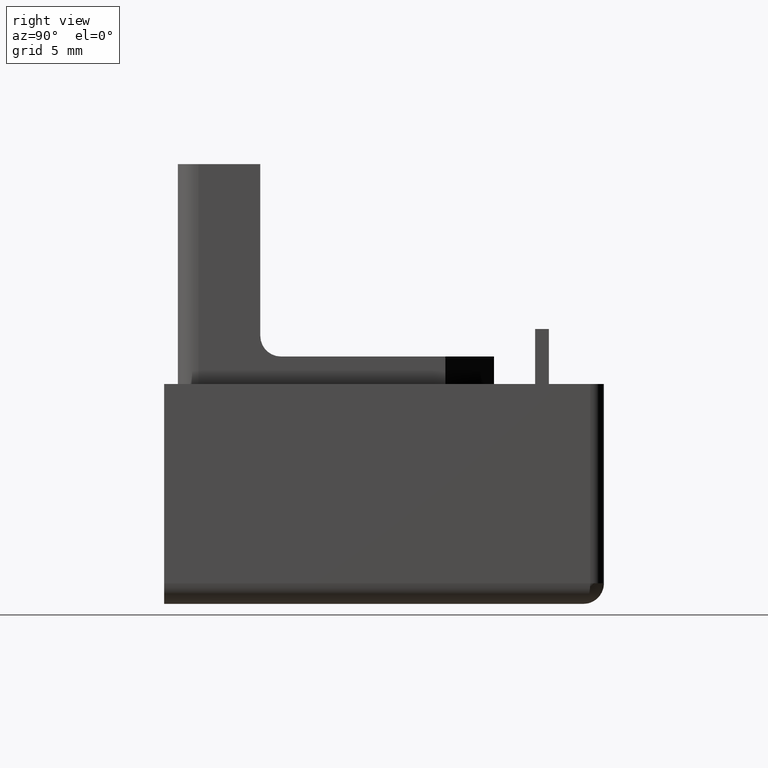
[diagram: clean part render]
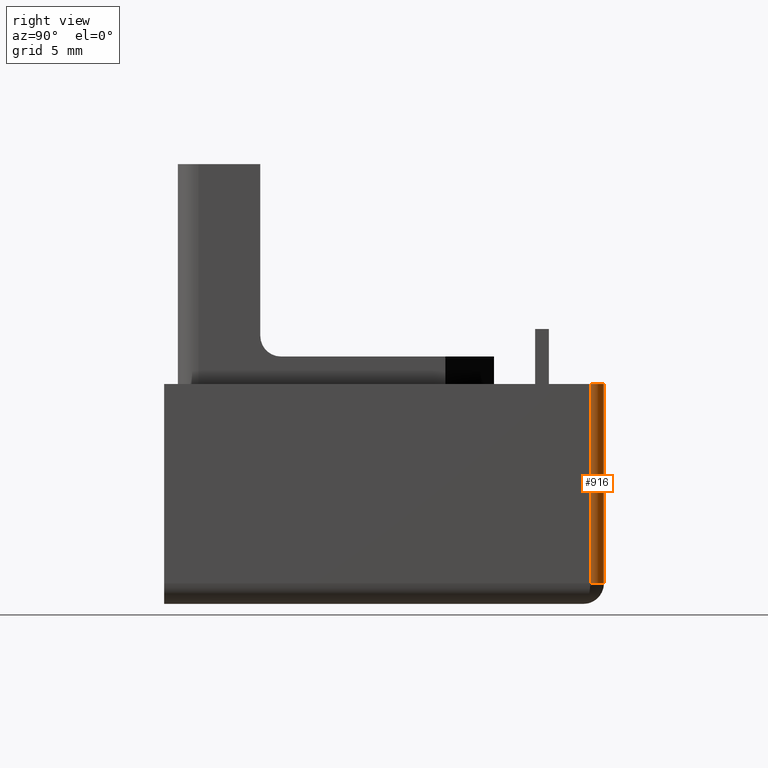
[diagram: same view with one face highlighted and labeled with its STEP entity id]
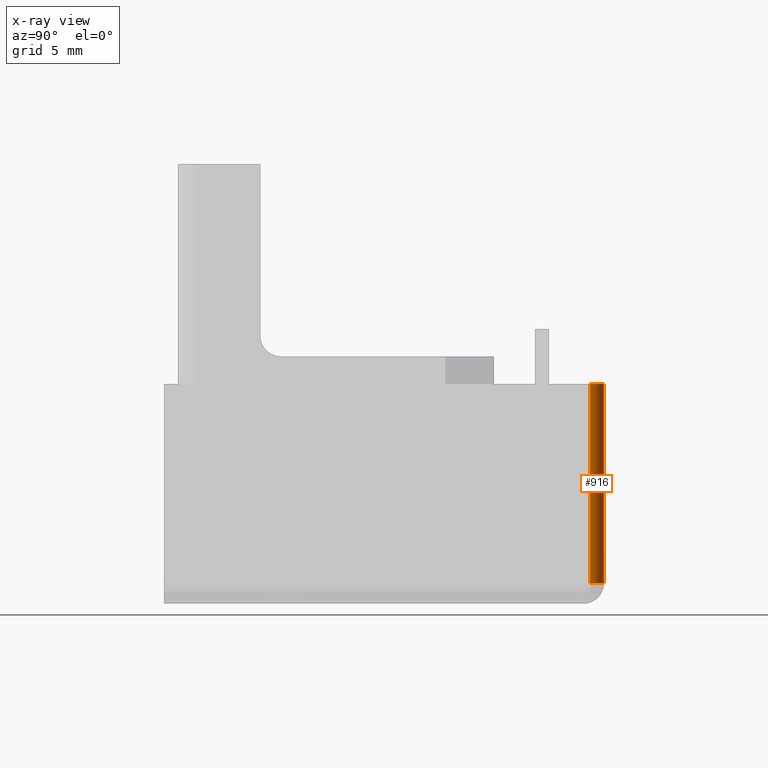
[diagram: x-ray of the same camera — body ghosted, the highlighted face saturated]
A machine part, right view. The second image highlights one B-rep face of the part: STEP entity #916.
The next image is the same camera in x-ray: the body ghosted, the highlighted face saturated — about 0% of this face is hidden behind the body in this view.
In plain terms, the highlighted cylindrical surface (edge-blend (fillet) strip) has radius 1 mm, axis along (0, 0, 1).
Its self-contained STEP definition (entity closure, byte-faithful):
#153=LINE('',#1553,#258);
#154=LINE('',#1557,#259);
#258=VECTOR('',#1228,14.5);
#259=VECTOR('',#1233,14.5);
#273=CYLINDRICAL_SURFACE('',#988,1.);
#319=FACE_OUTER_BOUND('',#370,.T.);
#370=EDGE_LOOP('',(#847,#848,#849,#850));
#374=CIRCLE('',#924,0.999999999999999);
#393=CIRCLE('',#989,1.);
#398=VERTEX_POINT('',#1273);
#400=VERTEX_POINT('',#1276);
#480=VERTEX_POINT('',#1551);
#481=VERTEX_POINT('',#1555);
#484=EDGE_CURVE('',#400,#398,#374,.T.);
#606=EDGE_CURVE('',#400,#480,#153,.T.);
#607=EDGE_CURVE('',#481,#480,#393,.T.);
#608=EDGE_CURVE('',#398,#481,#154,.T.);
#847=ORIENTED_EDGE('',*,*,#484,.F.);
#848=ORIENTED_EDGE('',*,*,#606,.T.);
#849=ORIENTED_EDGE('',*,*,#607,.F.);
#850=ORIENTED_EDGE('',*,*,#608,.F.);
#916=ADVANCED_FACE('',(#319),#273,.T.);
#924=AXIS2_PLACEMENT_3D('',#1278,#999,#1000);
#988=AXIS2_PLACEMENT_3D('',#1554,#1229,#1230);
#989=AXIS2_PLACEMENT_3D('',#1556,#1231,#1232);
#999=DIRECTION('center_axis',(0.,0.,-1.));
#1000=DIRECTION('ref_axis',(0.,1.,0.));
#1228=DIRECTION('',(0.,0.,1.));
#1229=DIRECTION('center_axis',(0.,0.,1.));
#1230=DIRECTION('ref_axis',(1.,0.,0.));
#1231=DIRECTION('center_axis',(0.,0.,1.));
#1232=DIRECTION('ref_axis',(1.,0.,0.));
#1233=DIRECTION('',(0.,0.,1.));
#1273=CARTESIAN_POINT('',(14.,15.5,-6.5));
#1276=CARTESIAN_POINT('',(13.,16.5,-6.5));
#1278=CARTESIAN_POINT('Origin',(13.,15.5,-6.5));
#1551=CARTESIAN_POINT('',(13.,16.5,8.));
#1553=CARTESIAN_POINT('',(13.,16.5,0.));
#1554=CARTESIAN_POINT('Origin',(13.,15.5,0.));
#1555=CARTESIAN_POINT('',(14.,15.5,8.));
#1556=CARTESIAN_POINT('Origin',(13.,15.5,8.));
#1557=CARTESIAN_POINT('',(14.,15.5,0.));